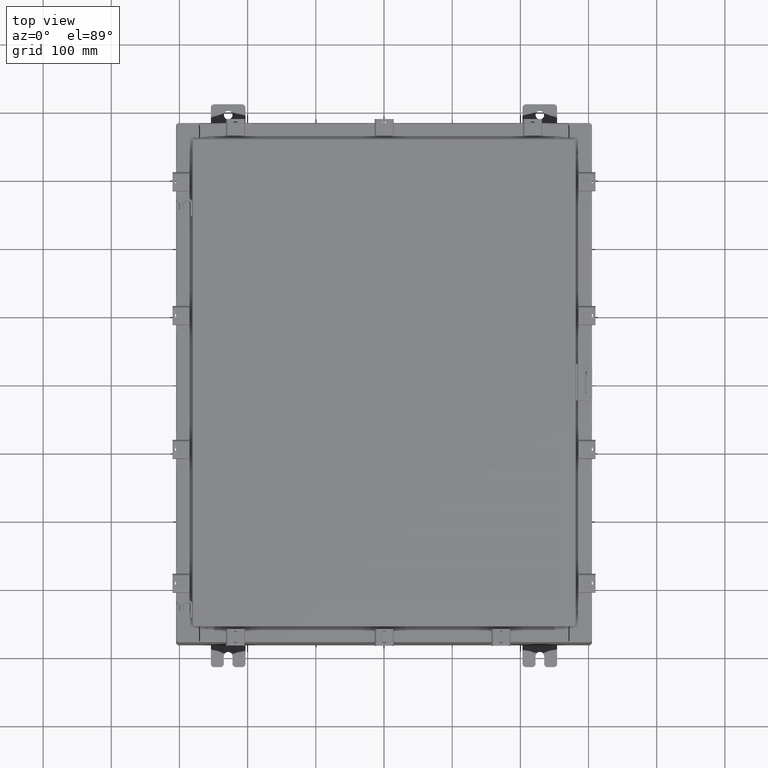
[diagram: clean part render]
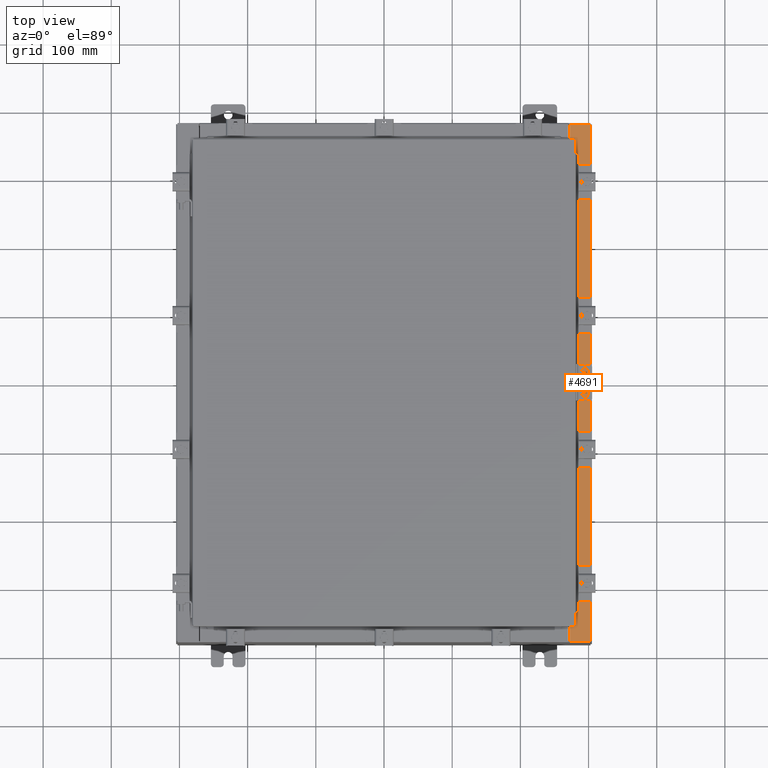
[diagram: same view with one face highlighted and labeled with its STEP entity id]
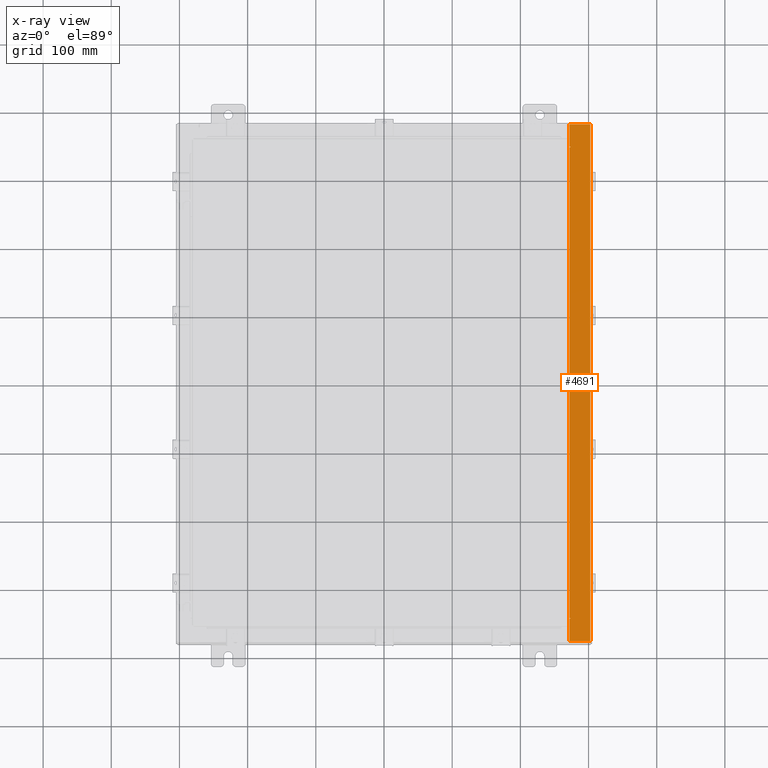
[diagram: x-ray of the same camera — body ghosted, the highlighted face saturated]
A machine part, top view. The second image highlights one B-rep face of the part: STEP entity #4691.
The next image is the same camera in x-ray: the body ghosted, the highlighted face saturated — about 0% of this face is hidden behind the body in this view.
In plain terms, the highlighted planar face has unit normal (-0, 0, -1).
Its self-contained STEP definition (entity closure, byte-faithful):
#15 = CARTESIAN_POINT ( 'NONE',  ( 5.335691853495958500E-014, -14.92529999999999800, 9.925300000000065700 ) ) ;
#272 = CARTESIAN_POINT ( 'NONE',  ( 10.75005000000003400, -13.59375000000000000, 9.925300000000008900 ) ) ;
#290 = VERTEX_POINT ( 'NONE', #21502 ) ;
#332 = EDGE_CURVE ( 'NONE', #6950, #10632, #11672, .T. ) ;
#768 = EDGE_LOOP ( 'NONE', ( #13160, #12114, #21554, #7087, #18442, #19668, #17656, #10401, #6112, #10948, #11016, #22697 ) ) ;
#1365 = LINE ( 'NONE', #2642, #19838 ) ;
#1597 = VECTOR ( 'NONE', #14816, 39.37007874015748100 ) ;
#1600 = DIRECTION ( 'NONE',  ( -0.0000000000000000000, -1.000000000000000000, -0.0000000000000000000 ) ) ;
#1645 = CARTESIAN_POINT ( 'NONE',  ( 10.75005000000003400, -13.63109999999999800, 9.925300000000008900 ) ) ;
#2298 = DIRECTION ( 'NONE',  ( -5.349571789159788500E-015, 0.0000000000000000000, -1.000000000000000000 ) ) ;
#2426 = CARTESIAN_POINT ( 'NONE',  ( 10.75005000000003400, -13.61242500000000000, 9.925300000000008900 ) ) ;
#2473 = CARTESIAN_POINT ( 'NONE',  ( 10.71270000000003500, 13.59375000000000000, 9.925300000000008900 ) ) ;
#2642 = CARTESIAN_POINT ( 'NONE',  ( 10.69970000000003200, -5.494975343389772900E-030, 9.925300000000008900 ) ) ;
#2734 = LINE ( 'NONE', #17430, #21210 ) ;
#3053 = VECTOR ( 'NONE', #15710, 39.37007874015748100 ) ;
#3419 = VERTEX_POINT ( 'NONE', #5297 ) ;
#3622 = VECTOR ( 'NONE', #5666, 39.37007874015748100 ) ;
#4218 = DIRECTION ( 'NONE',  ( 1.000000000000000000, 0.0000000000000000000, 0.0000000000000000000 ) ) ;
#4427 = DIRECTION ( 'NONE',  ( -5.135634964896009300E-031, -1.000000000000000000, 2.747344792763031300E-045 ) ) ;
#4691 = ADVANCED_FACE ( 'NONE', ( #9019 ), #16420, .F. ) ;
#4916 = CARTESIAN_POINT ( 'NONE',  ( 10.75005000000003400, 13.59375000000000000, 9.925300000000008900 ) ) ;
#4947 = DIRECTION ( 'NONE',  ( 1.000000000000000000, 0.0000000000000000000, 0.0000000000000000000 ) ) ;
#5189 = AXIS2_PLACEMENT_3D ( 'NONE', #2426, #14924, #4218 ) ;
#5297 = CARTESIAN_POINT ( 'NONE',  ( 10.69970000000003200, -14.92529999999999800, 9.925300000000008900 ) ) ;
#5666 = DIRECTION ( 'NONE',  ( -1.000000000000000000, 0.0000000000000000000, 0.0000000000000000000 ) ) ;
#6112 = ORIENTED_EDGE ( 'NONE', *, *, #20070, .F. ) ;
#6235 = LINE ( 'NONE', #17296, #15183 ) ;
#6950 = VERTEX_POINT ( 'NONE', #15185 ) ;
#7032 = CARTESIAN_POINT ( 'NONE',  ( 10.75005000000003400, 13.61242500000000000, 9.925300000000008900 ) ) ;
#7087 = ORIENTED_EDGE ( 'NONE', *, *, #16521, .F. ) ;
#8317 = CARTESIAN_POINT ( 'NONE',  ( 10.69970000000003200, -5.494975343389772900E-030, 9.925300000000008900 ) ) ;
#8363 = LINE ( 'NONE', #272, #3622 ) ;
#8512 = CIRCLE ( 'NONE', #5189, 0.01867499999999949400 ) ;
#8577 = LINE ( 'NONE', #8317, #17544 ) ;
#8665 = LINE ( 'NONE', #15, #17629 ) ;
#8687 = CARTESIAN_POINT ( 'NONE',  ( 11.91230000000003200, -14.92529999999999800, 9.925300000000001800 ) ) ;
#8816 = DIRECTION ( 'NONE',  ( 1.000000000000000000, 0.0000000000000000000, 0.0000000000000000000 ) ) ;
#9019 = FACE_OUTER_BOUND ( 'NONE', #768, .T. ) ;
#9338 = VERTEX_POINT ( 'NONE', #18091 ) ;
#10308 = CARTESIAN_POINT ( 'NONE',  ( 5.335691853495958500E-014, 14.92529999999999800, 9.925300000000065700 ) ) ;
#10401 = ORIENTED_EDGE ( 'NONE', *, *, #16954, .F. ) ;
#10507 = CARTESIAN_POINT ( 'NONE',  ( 10.75005000000003400, 13.63109999999999800, 9.925300000000008900 ) ) ;
#10632 = VERTEX_POINT ( 'NONE', #2473 ) ;
#10834 = EDGE_CURVE ( 'NONE', #15451, #12949, #6235, .T. ) ;
#10948 = ORIENTED_EDGE ( 'NONE', *, *, #332, .F. ) ;
#10997 = EDGE_CURVE ( 'NONE', #15036, #9338, #14053, .T. ) ;
#11016 = ORIENTED_EDGE ( 'NONE', *, *, #17820, .F. ) ;
#11241 = VECTOR ( 'NONE', #1600, 39.37007874015748100 ) ;
#11672 = LINE ( 'NONE', #20536, #1597 ) ;
#12114 = ORIENTED_EDGE ( 'NONE', *, *, #19357, .T. ) ;
#12131 = AXIS2_PLACEMENT_3D ( 'NONE', #12999, #2298, #14775 ) ;
#12866 = EDGE_CURVE ( 'NONE', #17164, #290, #17322, .T. ) ;
#12949 = VERTEX_POINT ( 'NONE', #1645 ) ;
#12999 = CARTESIAN_POINT ( 'NONE',  ( 5.335691853495958500E-014, 0.0000000000000000000, 9.925300000000065700 ) ) ;
#13160 = ORIENTED_EDGE ( 'NONE', *, *, #10834, .F. ) ;
#13795 = DIRECTION ( 'NONE',  ( 1.000000000000000000, 0.0000000000000000000, 0.0000000000000000000 ) ) ;
#13801 = VERTEX_POINT ( 'NONE', #21843 ) ;
#14004 = CIRCLE ( 'NONE', #14777, 0.01867499999999949400 ) ;
#14053 = LINE ( 'NONE', #10507, #22463 ) ;
#14310 = DIRECTION ( 'NONE',  ( 1.000000000000000000, 1.305543112181250400E-031, -5.349571789159789300E-015 ) ) ;
#14566 = EDGE_CURVE ( 'NONE', #12949, #17943, #8512, .T. ) ;
#14754 = CARTESIAN_POINT ( 'NONE',  ( 10.69970000000003200, -13.63109999999999800, 9.925300000000008900 ) ) ;
#14775 = DIRECTION ( 'NONE',  ( -1.000000000000000000, 0.0000000000000000000, 5.349571789159788500E-015 ) ) ;
#14777 = AXIS2_PLACEMENT_3D ( 'NONE', #7032, #19549, #8816 ) ;
#14816 = DIRECTION ( 'NONE',  ( -0.0000000000000000000, 1.000000000000000000, -0.0000000000000000000 ) ) ;
#14924 = DIRECTION ( 'NONE',  ( 5.349571789159788500E-015, 0.0000000000000000000, 1.000000000000000000 ) ) ;
#15036 = VERTEX_POINT ( 'NONE', #17875 ) ;
#15183 = VECTOR ( 'NONE', #13795, 39.37007874015748100 ) ;
#15185 = CARTESIAN_POINT ( 'NONE',  ( 10.71270000000003500, -13.59375000000000000, 9.925300000000008900 ) ) ;
#15451 = VERTEX_POINT ( 'NONE', #14754 ) ;
#15710 = DIRECTION ( 'NONE',  ( -1.000000000000000000, 4.861730685829018000E-063, 5.349571789159789300E-015 ) ) ;
#16420 = PLANE ( 'NONE',  #12131 ) ;
#16521 = EDGE_CURVE ( 'NONE', #17164, #13801, #20766, .T. ) ;
#16954 = EDGE_CURVE ( 'NONE', #20672, #15036, #14004, .T. ) ;
#17164 = VERTEX_POINT ( 'NONE', #20253 ) ;
#17244 = DIRECTION ( 'NONE',  ( -5.135634964896009300E-031, -1.000000000000000000, 2.747344792763031300E-045 ) ) ;
#17296 = CARTESIAN_POINT ( 'NONE',  ( 10.69970000000003200, -13.63109999999999800, 9.925300000000008900 ) ) ;
#17322 = LINE ( 'NONE', #10308, #3053 ) ;
#17430 = CARTESIAN_POINT ( 'NONE',  ( 10.71270000000003500, 13.59375000000000000, 9.925300000000008900 ) ) ;
#17544 = VECTOR ( 'NONE', #17244, 39.37007874015748100 ) ;
#17629 = VECTOR ( 'NONE', #14310, 39.37007874015748100 ) ;
#17656 = ORIENTED_EDGE ( 'NONE', *, *, #10997, .F. ) ;
#17820 = EDGE_CURVE ( 'NONE', #17943, #6950, #8363, .T. ) ;
#17875 = CARTESIAN_POINT ( 'NONE',  ( 10.75005000000003400, 13.63109999999999800, 9.925300000000008900 ) ) ;
#17943 = VERTEX_POINT ( 'NONE', #22009 ) ;
#18091 = CARTESIAN_POINT ( 'NONE',  ( 10.69970000000003200, 13.63109999999999800, 9.925300000000008900 ) ) ;
#18373 = EDGE_CURVE ( 'NONE', #3419, #13801, #8665, .T. ) ;
#18442 = ORIENTED_EDGE ( 'NONE', *, *, #12866, .T. ) ;
#19357 = EDGE_CURVE ( 'NONE', #15451, #3419, #1365, .T. ) ;
#19549 = DIRECTION ( 'NONE',  ( 5.349571789159788500E-015, 0.0000000000000000000, 1.000000000000000000 ) ) ;
#19668 = ORIENTED_EDGE ( 'NONE', *, *, #20609, .T. ) ;
#19838 = VECTOR ( 'NONE', #4427, 39.37007874015748100 ) ;
#20070 = EDGE_CURVE ( 'NONE', #10632, #20672, #2734, .T. ) ;
#20253 = CARTESIAN_POINT ( 'NONE',  ( 11.91230000000003200, 14.92529999999999800, 9.925300000000001800 ) ) ;
#20536 = CARTESIAN_POINT ( 'NONE',  ( 10.71270000000003500, -13.59375000000000000, 9.925300000000008900 ) ) ;
#20609 = EDGE_CURVE ( 'NONE', #290, #9338, #8577, .T. ) ;
#20672 = VERTEX_POINT ( 'NONE', #4916 ) ;
#20766 = LINE ( 'NONE', #8687, #11241 ) ;
#21162 = DIRECTION ( 'NONE',  ( -1.000000000000000000, 0.0000000000000000000, 0.0000000000000000000 ) ) ;
#21210 = VECTOR ( 'NONE', #4947, 39.37007874015748100 ) ;
#21502 = CARTESIAN_POINT ( 'NONE',  ( 10.69970000000003200, 14.92529999999999800, 9.925300000000008900 ) ) ;
#21554 = ORIENTED_EDGE ( 'NONE', *, *, #18373, .T. ) ;
#21843 = CARTESIAN_POINT ( 'NONE',  ( 11.91230000000003200, -14.92529999999999800, 9.925300000000001800 ) ) ;
#22009 = CARTESIAN_POINT ( 'NONE',  ( 10.75005000000003400, -13.59375000000000000, 9.925300000000008900 ) ) ;
#22463 = VECTOR ( 'NONE', #21162, 39.37007874015748100 ) ;
#22697 = ORIENTED_EDGE ( 'NONE', *, *, #14566, .F. ) ;